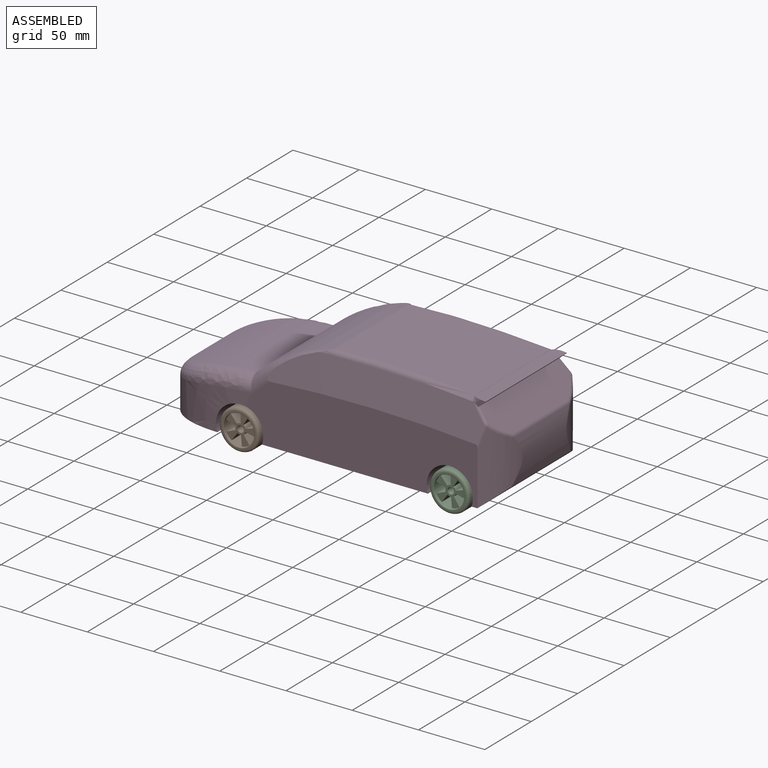
[diagram: assembled view]
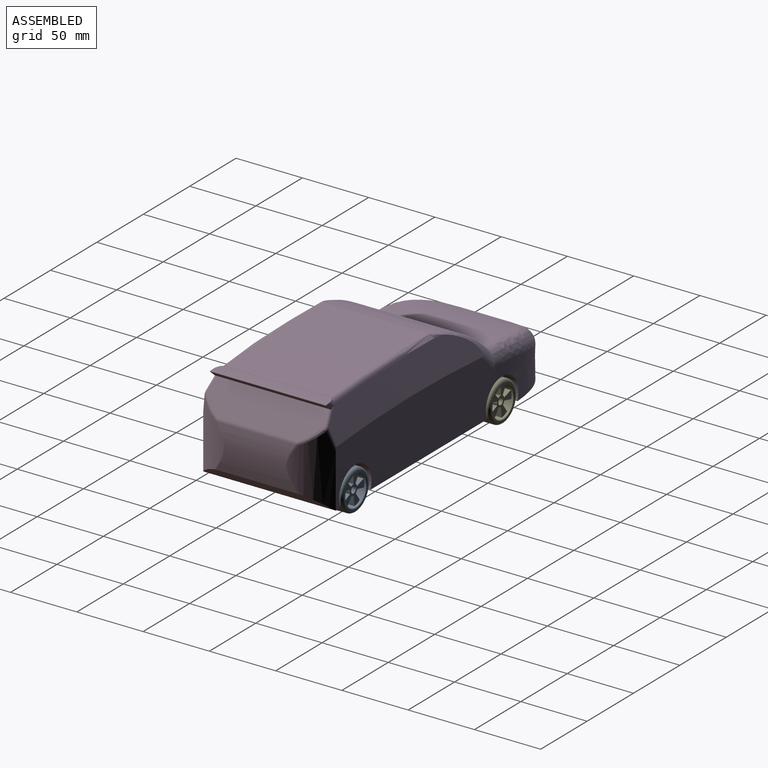
[diagram: assembled view, second angle]
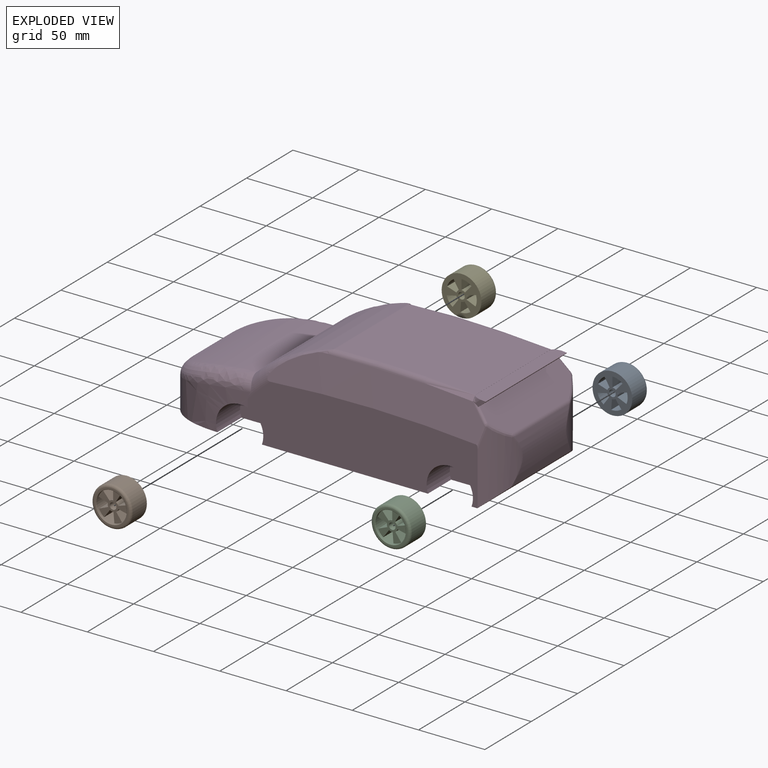
[diagram: exploded view]
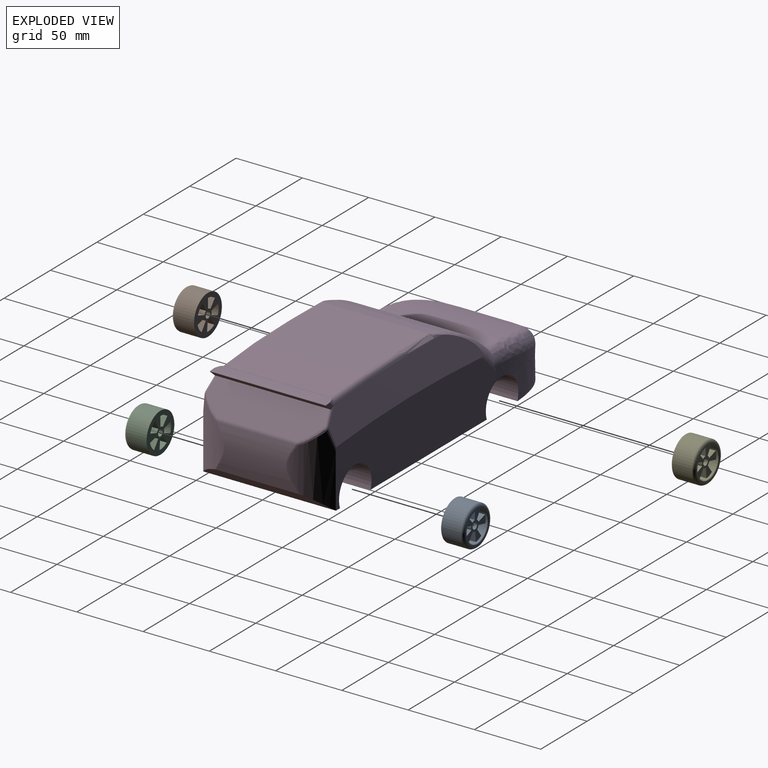
[diagram: exploded view, second angle]
ASSEMBLY  parts=5 mates=4
PART A: 23 faces, bbox 32.5x32.5x17 mm
  f0: cylinder r=11.5mm len=23mm, axis (0,0,1), area 722.2mm2, adj f5,f8,f11,f12,f13,f15,f16,f17
  f1: cylinder r=4mm len=15mm, axis (0,0,1), area 42.7mm2, adj f5,f8,f15,f21
  f2: cylinder r=4mm len=15mm, axis (0,0,1), area 42.7mm2, adj f5,f8,f19,f22
  f3: cylinder r=4mm len=15mm, axis (0,0,1), area 42.7mm2, adj f5,f8,f18,f20
  f4: cylinder r=4mm len=15mm, axis (0,0,1), area 42.7mm2, adj f5,f8,f12,f17
  f5: plane 30x30mm, normal (0,0,-1), area 480.4mm2, adj f0,f1,f2,f3,f4,f6,f9,f12
  f6: cylinder r=15mm len=30mm, axis (0,0,-1), area 1413.7mm2, adj f5,f10
  f7: plane 26x26mm, normal (0,0,1), area 78.5mm2, adj f10,f11
  f8: plane 22.96x22.44mm, normal (0,0,1), area 189mm2, adj f0,f1,f2,f3,f4,f9,f12,f13
  f9: cylinder r=2.5mm len=15mm, axis (0,0,1), area 235.6mm2, adj f5,f8
  f10: torus R=13mm, axis (0,0,1), area 281.7mm2, adj f6,f7
  f11: torus R=12mm, axis (0,0,1), area 57.6mm2, adj f0,f7
  f12: plane 15x7.5mm, normal (-1,0,0), area 112.5mm2, adj f0,f4,f5,f8
  f13: plane 15x6.41mm, normal (0.86,-0.52,0), area 112.5mm2, adj f0,f5,f8,f14
  f14: cylinder r=4mm len=15mm, axis (0,0,1), area 42.7mm2, adj f5,f8,f13,f16
  f15: plane 15x7.3mm, normal (-0.23,-0.97,0), area 112.5mm2, adj f0,f1,f5,f8
  f16: plane 15x7.13mm, normal (-0.31,0.95,0), area 112.5mm2, adj f0,f5,f8,f14
  f17: plane 15x5.68mm, normal (0.76,0.65,0), area 112.5mm2, adj f0,f4,f5,f8
  f18: plane 15x7.13mm, normal (-0.31,-0.95,0), area 112.5mm2, adj f0,f3,f5,f8
  f19: plane 15x6.07mm, normal (0.81,-0.59,0), area 112.5mm2, adj f0,f2,f5,f8
  f20: plane 15x6.92mm, normal (-0.39,0.92,0), area 112.5mm2, adj f0,f3,f5,f8
  f21: plane 15x6.07mm, normal (0.81,0.59,0), area 112.5mm2, adj f0,f1,f5,f8
  f22: plane 15x7.47mm, normal (-1,-0.08,0), area 112.5mm2, adj f0,f2,f5,f8
PART B: same geometry as A
PART C: same geometry as A
PART D: 81 faces, bbox 285.9x116.5x118.7 mm
  f0: cylinder r=972.99mm len=106.59mm, axis (0,-1,0), area 8511.2mm2, adj f1,f2,f22,f58
  f1: torus R=968.99mm, axis (0,-1,0), area 587.7mm2, adj f0,f3,f22,f26,f35,f56,f57,f58
  f2: torus R=968.99mm, axis (0,1,0), area 587.7mm2, adj f0,f4,f5,f22,f25,f36,f57,f58
  f3: extruded ~6.2x6.16mm, area 12.8mm2, adj f1,f56,f57
  f4: extruded ~6.2x6.16mm, area 12.8mm2, adj f2,f5,f57
  f5: plane 10.03x5.98mm, normal (0,1,0), area 20.4mm2, adj f2,f4,f6,f57,f59,f61
  f6: plane 87.57x5.45mm, normal (0.65,0,-0.76), area 591.4mm2, adj f5,f7,f56,f59,f60,f61
  f7: plane 89.21x19.06mm, normal (0.76,0,0.65), area 2047.4mm2, adj f6,f60,f61,f63,f66,f73
  f8: plane 32.98x8.97mm, normal (0,0,-1), area 295.7mm2, adj f9,f10,f41,f45
  f9: plane 109.77x47.57mm, normal (0,0,-1), area 3677.7mm2, adj f8,f12,f13,f14,f15,f18,f19,f34
  f10: plane 162.54x100mm, normal (0,0,-1), area 3995.1mm2, adj f8,f11,f12,f13,f14,f17,f27,f37
  f11: plane 174.36x48.01mm, normal (0,-1,0), area 6927.7mm2, adj f10,f13,f15,f24,f26,f27,f35,f39
  f12: plane 32.98x8.86mm, normal (0,0,-1), area 292.1mm2, adj f9,f10,f42,f43
  f13: cylinder r=17.5mm len=35mm, axis (0,-1,0), area 1708.1mm2, adj f9,f10,f11,f15,f42
  f14: cylinder r=17.5mm len=35mm, axis (0,-1,0), area 1675.4mm2, adj f9,f10,f17,f18,f41
  f15: extruded ~66.6x32.93mm, area 1820.9mm2, adj f9,f11,f13,f19,f30,f31,f35
  f16: cylinder r=67.93mm len=61.11mm, axis (0,-1,0), area 2007.4mm2, adj f27,f70,f73,f76
  f17: plane 174.36x48.01mm, normal (0,1,0), area 6927.7mm2, adj f10,f14,f18,f23,f25,f27,f36,f37
  f18: extruded ~67x32.93mm, area 1790.5mm2, adj f9,f14,f17,f28,f29,f34,f36
  f19: plane 39.95x22.48mm, normal (-1,0,0), area 898mm2, adj f9,f15,f32,f34
  f20: cylinder r=146.18mm len=80.57mm, axis (0,-1,0), area 3381.1mm2, adj f21,f29,f31,f32
  f21: plane 80.58x4.22mm, normal (0,0,1), area 338.5mm2, adj f20,f22,f28,f30
  f22: cylinder r=121.98mm len=80mm, axis (0,-1,0), area 5368mm2, adj f0,f1,f2,f21,f28,f30,f35,f36
  f23: cylinder r=45.8mm len=54.51mm, axis (0,0,-1), area 1119.2mm2, adj f17,f27,f66,f69,f74,f76
  f24: cylinder r=45.8mm len=54.51mm, axis (0,0,-1), area 1119.1mm2, adj f11,f27,f63,f65,f70,f72
  f25: cone r=945.49mm half-angle=75.7deg, axis (0,-1,0), area 3713.9mm2, adj f2,f17,f36,f61,f67,f69
  f26: cone r=945.49mm half-angle=75.7deg, axis (0,1,0), area 3713.3mm2, adj f1,f11,f35,f60,f62,f65
  f27: plane 100.48x13.66mm, normal (0.65,0,-0.76), area 1480.1mm2, adj f10,f11,f16,f17,f23,f24,f70,f76
  f28: bspline ~15.96x10.62mm, area 79.7mm2, adj f18,f21,f22,f29,f36
  f29: bspline ~63.75x30.68mm, area 1063.5mm2, adj f18,f20,f28,f33
  f30: bspline ~12.98x11.08mm, area 73.1mm2, adj f15,f21,f22,f31,f35
  f31: bspline ~62.96x31.42mm, area 1071.6mm2, adj f15,f20,f30,f32
  f32: cylinder r=10mm len=39.95mm, axis (0,-1,0), area 470mm2, adj f19,f20,f31,f33
  f33: sphere r=10mm, area 0.7mm2, adj f29,f32,f34
  f34: cylinder r=10mm len=22.48mm, axis (0,0,-1), area 2.4mm2, adj f9,f18,f19,f33
  f35: torus R=111.98mm, axis (0,1,0), area 570.8mm2, adj f1,f11,f15,f22,f26,f30
  f36: torus R=111.98mm, axis (0,1,0), area 567.2mm2, adj f2,f17,f18,f22,f25,f28
  f37: cylinder r=17.5mm len=35mm, axis (0,-1,0), area 1673.3mm2, adj f10,f17,f38
  f38: plane 35x23.36mm, normal (0,1,0), area 662.7mm2, adj f10,f37,f80
  f39: cylinder r=17.5mm len=35mm, axis (0,-1,0), area 1673.3mm2, adj f10,f11,f40
  f40: plane 35x23.36mm, normal (0,-1,0), area 662.7mm2, adj f10,f39,f79
  f41: plane 35x23.36mm, normal (0,1,0), area 662.6mm2, adj f8,f14,f77
  f42: plane 35x23.36mm, normal (0,-1,0), area 662.6mm2, adj f12,f13,f78
  f43: plane 44x25mm, normal (0,1,0), area 1080.3mm2, adj f9,f10,f12,f44,f54,f55,f78
  f44: plane 32.18x25mm, normal (1,0,0), area 804.4mm2, adj f9,f43,f45,f55
  f45: plane 44x25mm, normal (0,-1,0), area 1080.4mm2, adj f8,f9,f10,f44,f46,f55,f77
  f46: plane 25x25mm, normal (1,0,0), area 625mm2, adj f10,f45,f47,f55
  f47: plane 111x25mm, normal (0,-1,0), area 2775mm2, adj f10,f46,f48,f55
  f48: plane 25x25mm, normal (-1,0,0), area 625mm2, adj f10,f47,f49,f55
  f49: plane 40x25mm, normal (0,-1,0), area 980.4mm2, adj f10,f48,f50,f55,f80
  f50: plane 32.18x25mm, normal (-1,0,0), area 804.4mm2, adj f10,f49,f51,f55
  f51: plane 40x25mm, normal (0,1,0), area 980.4mm2, adj f10,f50,f52,f55,f79
  f52: plane 25x25mm, normal (-1,0,0), area 625mm2, adj f10,f51,f53,f55
  f53: plane 111x25mm, normal (0,1,0), area 2775mm2, adj f10,f52,f54,f55
  f54: plane 25x25mm, normal (1,0,0), area 625mm2, adj f10,f43,f53,f55
  f55: plane 195x82.18mm, normal (0,0,-1), area 11824.3mm2, adj f43,f44,f45,f46,f47,f48,f49,f50
  f56: plane 10.03x5.98mm, normal (0,-1,0), area 20.4mm2, adj f1,f3,f6,f57,f59,f60
  f57: cylinder r=89.87mm len=87.53mm, axis (0,-1,0), area 840.7mm2, adj f1,f2,f3,f4,f5,f56,f58,f59
  f58: plane 81.09x0.06mm, normal (1,0,0), area 4.3mm2, adj f0,f1,f2,f57
  f59: cylinder r=0.3mm len=87.53mm, axis (0,-1,0), area 61mm2, adj f5,f6,f56,f57
  f60: bspline ~111.41x95.88mm, area 34.9mm2, adj f6,f7,f26,f56,f62
  f61: bspline ~108.5x93.4mm, area 34.9mm2, adj f5,f6,f7,f25,f67
  f62: bspline ~2.11x1.87mm, area 0.9mm2, adj f26,f60,f63,f64
  f63: bspline ~16.19x12.46mm, area 52.3mm2, adj f7,f24,f62,f64,f72
  f64: bspline ~3.22x2.48mm, area 2.2mm2, adj f62,f63,f65
  f65: bspline ~26.28x9.16mm, area 34.9mm2, adj f11,f24,f26,f64
  f66: bspline ~16.19x12.46mm, area 52.3mm2, adj f7,f23,f67,f68,f74
  f67: bspline ~2.36x2.09mm, area 0.9mm2, adj f25,f61,f66,f68
  f68: bspline ~3.18x2.45mm, area 2.2mm2, adj f66,f67,f69
  f69: bspline ~26.28x9.16mm, area 34.9mm2, adj f17,f23,f25,f68
  f70: bspline ~42.11x12.49mm, area 58.8mm2, adj f16,f24,f27,f71
  f71: bspline ~3.32x2.49mm, area 1.9mm2, adj f70,f72,f73
  f72: bspline ~2.43x1.72mm, area 0.4mm2, adj f24,f63,f71,f73
  f73: cylinder r=5mm len=60.97mm, axis (0,-1,0), area 142.4mm2, adj f7,f16,f71,f72,f74,f75
  f74: bspline ~2.43x1.72mm, area 0.4mm2, adj f23,f66,f73,f75
  f75: bspline ~2.99x2.26mm, area 1.9mm2, adj f73,f74,f76
  f76: bspline ~41.4x13.19mm, area 58.8mm2, adj f16,f23,f27,f75
  f77: cylinder r=2.5mm len=8.97mm, axis (0,-1,0), area 140.9mm2, adj f41,f45
  f78: cylinder r=2.5mm len=8.86mm, axis (0,-1,0), area 139.1mm2, adj f42,f43
  f79: cylinder r=2.5mm len=8.86mm, axis (0,-1,0), area 139.1mm2, adj f40,f51
  f80: cylinder r=2.5mm len=8.97mm, axis (0,-1,0), area 140.9mm2, adj f38,f49
PART E: same geometry as A
PLACE A rot(axis=(0,0.71,0.71),180deg) t=(89.56,46.45,-8.04)mm
PLACE B rot(axis=(1,0,0),90deg) t=(-68.62,-21.75,-8.04)mm
PLACE C rot(axis=(1,0,0),90deg) t=(89.56,-21.25,-8.04)mm
PLACE D t=(-35.35,8.78,-13.9)mm
PLACE E rot(axis=(0,-0.71,-0.71),180deg) t=(-68.62,46.75,-8.04)mm
MATE cylindrical A.f1 <-> D.f37  axis (0,1,0) through (89.56,46.45,-8.04)mm
MATE cylindrical E.f9 <-> D.f13  axis (0,1,0) through (-68.62,46.75,-8.04)mm
MATE cylindrical B.f9 <-> D.f13  axis (0,1,0) through (-68.62,-21.75,-8.04)mm
MATE cylindrical C.f9 <-> D.f37  axis (0,-1,0) through (89.56,-21.25,-8.04)mm
